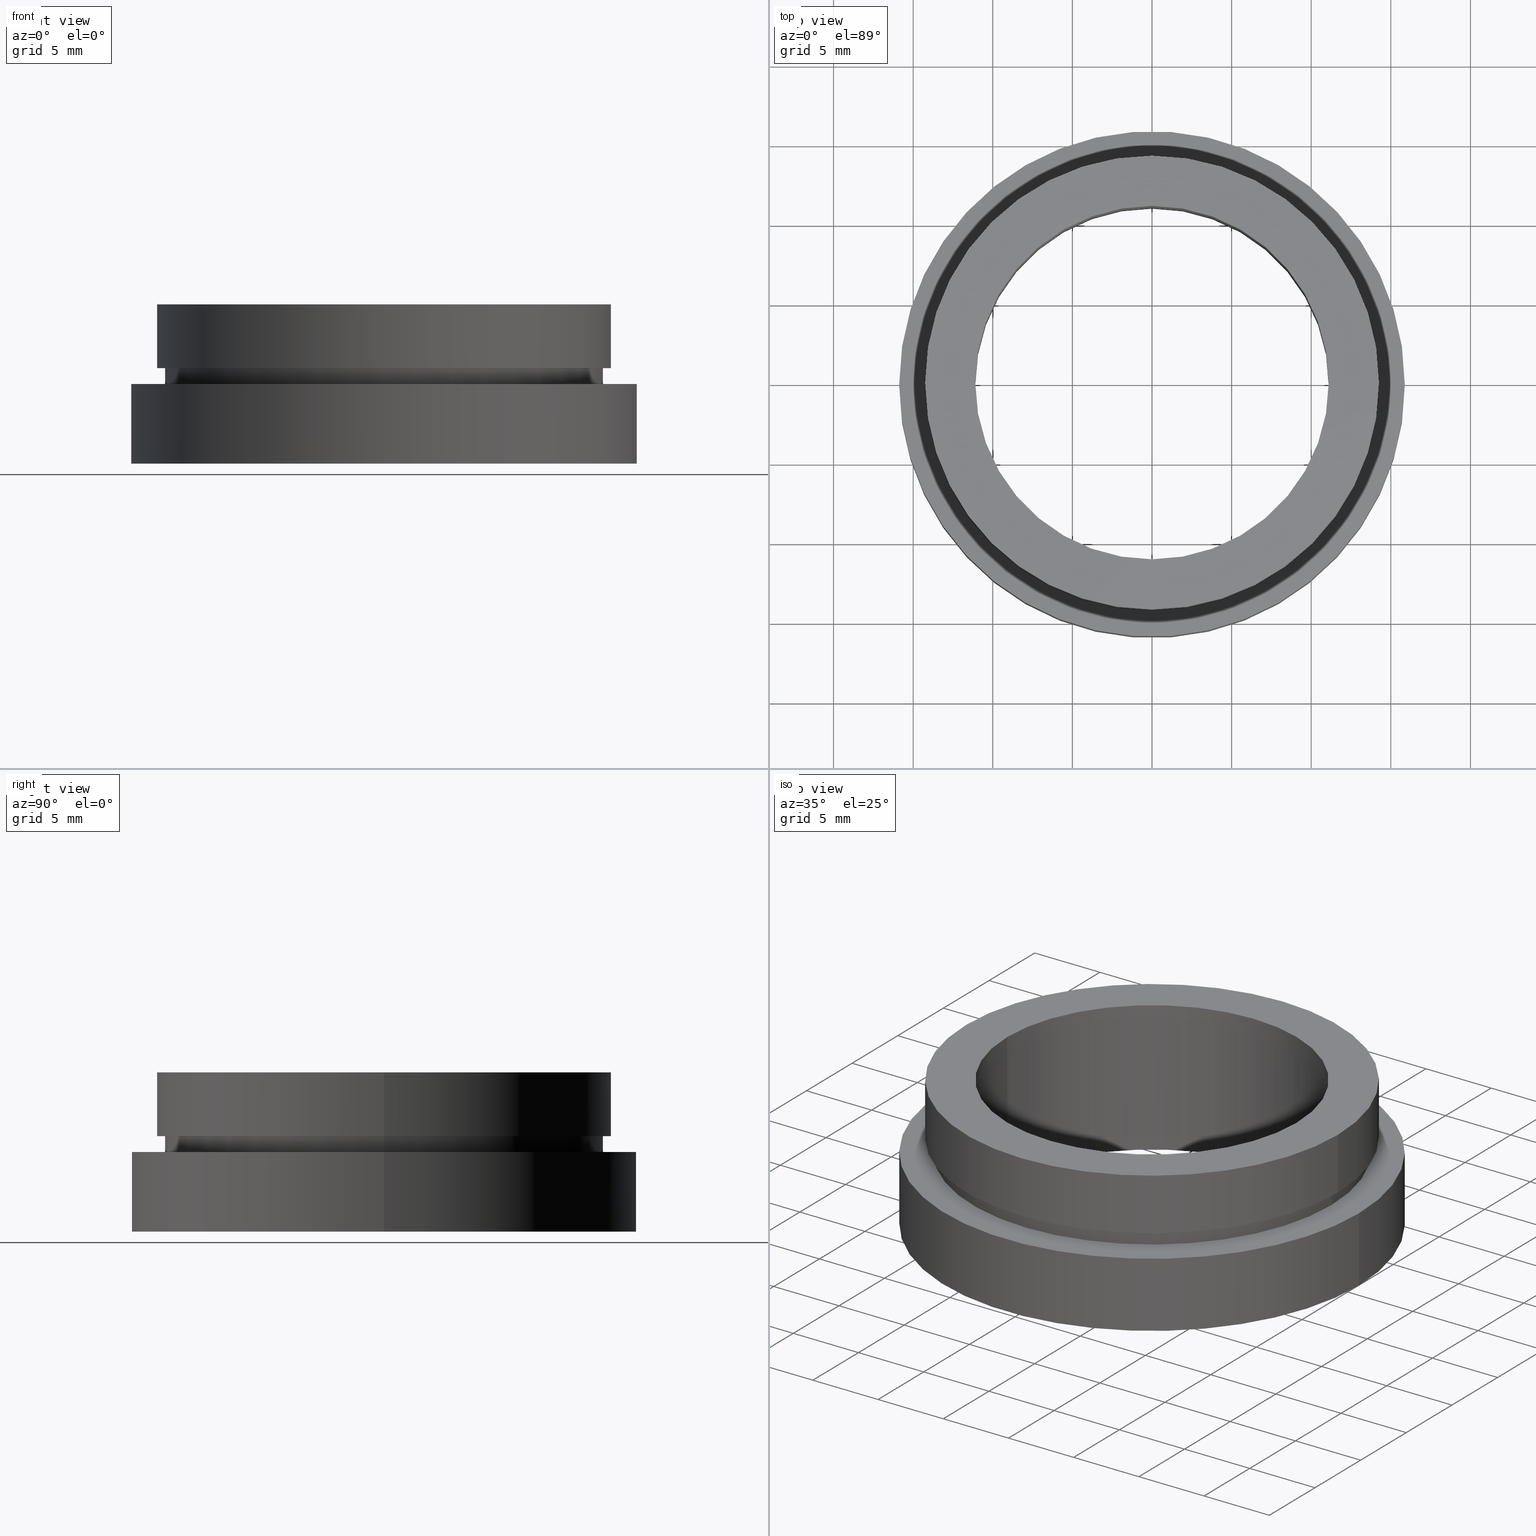
[diagram: canonical four-view strip — front | top / right | iso, engineering-drawing reading convention]
A machine part, canonical four-view strip (front | top / right | iso — engineering-drawing reading convention). The complete STEP part file that produces these views, byte-faithful:
ISO-10303-21;
HEADER;
FILE_DESCRIPTION (( 'STEP AP214' ),
    '1' );
FILE_NAME ('504064.STEP',
    '2019-09-16T08:11:01',
    ( 'user' ),
    ( '΢���й�' ),
    'SwSTEP 2.0',
    'SolidWorks 2016',
    '' );
FILE_SCHEMA (( 'AUTOMOTIVE_DESIGN' ));
ENDSEC;

DATA;
#1 = ADVANCED_FACE ( 'NONE', ( #52 ), #7, .F. ) ;
#2 = FILL_AREA_STYLE_COLOUR ( '', #296 ) ;
#3 = ORIENTED_EDGE ( 'NONE', *, *, #24, .T. ) ;
#4 = AXIS2_PLACEMENT_3D ( 'NONE', #189, #25, #123 ) ;
#5 = CIRCLE ( 'NONE', #276, 11.10000000000000100 ) ;
#6 = FILL_AREA_STYLE_COLOUR ( '', #170 ) ;
#7 = CYLINDRICAL_SURFACE ( 'NONE', #390, 11.10000000000000100 ) ;
#8 = DIRECTION ( 'NONE',  ( -0.0000000000000000000, -0.0000000000000000000, -1.000000000000000000 ) ) ;
#9 = CARTESIAN_POINT ( 'NONE',  ( 13.75000000000000400, 0.0000000000000000000, -5.000000000000000000 ) ) ;
#10 = AXIS2_PLACEMENT_3D ( 'NONE', #161, #222, #376 ) ;
#11 = DIRECTION ( 'NONE',  ( -1.000000000000000000, 0.0000000000000000000, 0.0000000000000000000 ) ) ;
#12 = ADVANCED_FACE ( 'NONE', ( #364, #313 ), #172, .F. ) ;
#13 = AXIS2_PLACEMENT_3D ( 'NONE', #323, #265, #386 ) ;
#14 = ORIENTED_EDGE ( 'NONE', *, *, #381, .F. ) ;
#15 = AXIS2_PLACEMENT_3D ( 'NONE', #247, #76, #80 ) ;
#16 = SURFACE_STYLE_FILL_AREA ( #329 ) ;
#17 = PRODUCT_CONTEXT ( 'NONE', #193, 'mechanical' ) ;
#18 = EDGE_LOOP ( 'NONE', ( #54, #181, #118, #210 ) ) ;
#19 = EDGE_CURVE ( 'NONE', #187, #50, #142, .T. ) ;
#20 = CIRCLE ( 'NONE', #380, 15.87500000000000000 ) ;
#21 = SURFACE_STYLE_USAGE ( .BOTH. , #106 ) ;
#22 = ORIENTED_EDGE ( 'NONE', *, *, #381, .T. ) ;
#23 = ORIENTED_EDGE ( 'NONE', *, *, #209, .F. ) ;
#24 = EDGE_CURVE ( 'NONE', #400, #156, #5, .T. ) ;
#25 = DIRECTION ( 'NONE',  ( -0.0000000000000000000, -0.0000000000000000000, -1.000000000000000000 ) ) ;
#26 = AXIS2_PLACEMENT_3D ( 'NONE', #414, #55, #387 ) ;
#27 = CIRCLE ( 'NONE', #38, 13.75000000000000400 ) ;
#28 = DIRECTION ( 'NONE',  ( -0.0000000000000000000, -0.0000000000000000000, -1.000000000000000000 ) ) ;
#29 = EDGE_CURVE ( 'NONE', #187, #75, #20, .T. ) ;
#30 =( NAMED_UNIT ( * ) SI_UNIT ( $, .STERADIAN. ) SOLID_ANGLE_UNIT ( ) );
#31 = CARTESIAN_POINT ( 'NONE',  ( 14.25000000000000400, 0.0000000000000000000, -4.000000000000000000 ) ) ;
#32 = DIRECTION ( 'NONE',  ( -0.0000000000000000000, -0.0000000000000000000, -1.000000000000000000 ) ) ;
#33 = ADVANCED_FACE ( 'NONE', ( #275 ), #63, .T. ) ;
#34 = ORIENTED_EDGE ( 'NONE', *, *, #62, .F. ) ;
#35 = DIRECTION ( 'NONE',  ( -0.0000000000000000000, -0.0000000000000000000, -1.000000000000000000 ) ) ;
#36 = DIRECTION ( 'NONE',  ( -0.0000000000000000000, -0.0000000000000000000, -1.000000000000000000 ) ) ;
#37 = UNCERTAINTY_MEASURE_WITH_UNIT (LENGTH_MEASURE( 1.000000000000000100E-005 ), #167, 'distance_accuracy_value', 'NONE');
#38 = AXIS2_PLACEMENT_3D ( 'NONE', #166, #99, #184 ) ;
#39 = PLANE ( 'NONE',  #373 ) ;
#40 = ORIENTED_EDGE ( 'NONE', *, *, #112, .T. ) ;
#41 = STYLED_ITEM ( 'NONE', ( #134 ), #33 ) ;
#42 =( NAMED_UNIT ( * ) PLANE_ANGLE_UNIT ( ) SI_UNIT ( $, .RADIAN. ) );
#43 = CARTESIAN_POINT ( 'NONE',  ( 0.0000000000000000000, 0.0000000000000000000, -19.14057971014493000 ) ) ;
#44 = ORIENTED_EDGE ( 'NONE', *, *, #92, .T. ) ;
#45 = ORIENTED_EDGE ( 'NONE', *, *, #248, .T. ) ;
#46 = CARTESIAN_POINT ( 'NONE',  ( -14.25000000000000400, 0.0000000000000000000, -19.14057971014493000 ) ) ;
#47 = FACE_OUTER_BOUND ( 'NONE', #244, .T. ) ;
#48 = PRESENTATION_LAYER_ASSIGNMENT (  '', '', ( #73 ) ) ;
#49 = PRESENTATION_LAYER_ASSIGNMENT (  '', '', ( #325 ) ) ;
#50 = VERTEX_POINT ( 'NONE', #352 ) ;
#51 = LINE ( 'NONE', #218, #260 ) ;
#52 = FACE_OUTER_BOUND ( 'NONE', #97, .T. ) ;
#53 = EDGE_LOOP ( 'NONE', ( #416, #326, #82, #347 ) ) ;
#54 = ORIENTED_EDGE ( 'NONE', *, *, #147, .T. ) ;
#55 = DIRECTION ( 'NONE',  ( -0.0000000000000000000, -0.0000000000000000000, -1.000000000000000000 ) ) ;
#56 = ORIENTED_EDGE ( 'NONE', *, *, #124, .T. ) ;
#57 = DIRECTION ( 'NONE',  ( 0.0000000000000000000, 0.0000000000000000000, 1.000000000000000000 ) ) ;
#58 = FILL_AREA_STYLE ('',( #2 ) ) ;
#59 = STYLED_ITEM ( 'NONE', ( #194 ), #1 ) ;
#60 = CYLINDRICAL_SURFACE ( 'NONE', #152, 13.75000000000000400 ) ;
#61 = ORIENTED_EDGE ( 'NONE', *, *, #191, .T. ) ;
#62 = EDGE_CURVE ( 'NONE', #392, #148, #163, .T. ) ;
#63 = CYLINDRICAL_SURFACE ( 'NONE', #290, 14.25000000000000400 ) ;
#64 = CARTESIAN_POINT ( 'NONE',  ( 11.10000000000000100, 1.359357947053562400E-015, -10.00000000000000000 ) ) ;
#65 = ORIENTED_EDGE ( 'NONE', *, *, #176, .F. ) ;
#66 = ADVANCED_FACE ( 'NONE', ( #197, #203 ), #39, .F. ) ;
#67 = SURFACE_SIDE_STYLE ('',( #406 ) ) ;
#68 = LINE ( 'NONE', #242, #125 ) ;
#69 = ORIENTED_EDGE ( 'NONE', *, *, #292, .T. ) ;
#70 = EDGE_CURVE ( 'NONE', #171, #423, #382, .T. ) ;
#71 = PLANE ( 'NONE',  #251 ) ;
#72 = DIRECTION ( 'NONE',  ( -1.000000000000000000, 0.0000000000000000000, 0.0000000000000000000 ) ) ;
#73 = STYLED_ITEM ( 'NONE', ( #362 ), #411 ) ;
#74 = DIRECTION ( 'NONE',  ( -1.000000000000000000, 0.0000000000000000000, 0.0000000000000000000 ) ) ;
#75 = VERTEX_POINT ( 'NONE', #307 ) ;
#76 = DIRECTION ( 'NONE',  ( -0.0000000000000000000, -0.0000000000000000000, -1.000000000000000000 ) ) ;
#77 = FACE_OUTER_BOUND ( 'NONE', #241, .T. ) ;
#78 = VECTOR ( 'NONE', #289, 1000.000000000000000 ) ;
#79 = PRESENTATION_LAYER_ASSIGNMENT (  '', '', ( #245 ) ) ;
#80 = DIRECTION ( 'NONE',  ( -1.000000000000000000, 0.0000000000000000000, 0.0000000000000000000 ) ) ;
#81 = UNCERTAINTY_MEASURE_WITH_UNIT (LENGTH_MEASURE( 1.000000000000000100E-005 ), #107, 'distance_accuracy_value', 'NONE');
#82 = ORIENTED_EDGE ( 'NONE', *, *, #238, .T. ) ;
#83 = PLANE ( 'NONE',  #319 ) ;
#84 = EDGE_CURVE ( 'NONE', #272, #145, #259, .T. ) ;
#85 = PRODUCT_DEFINITION_CONTEXT ( 'detailed design', #389, 'design' ) ;
#86 = APPLICATION_PROTOCOL_DEFINITION ( 'draft international standard', 'automotive_design', 1998, #389 ) ;
#87 = CARTESIAN_POINT ( 'NONE',  ( 0.0000000000000000000, 0.0000000000000000000, -19.14057971014493000 ) ) ;
#88 = CARTESIAN_POINT ( 'NONE',  ( 0.0000000000000000000, 0.0000000000000000000, 0.0000000000000000000 ) ) ;
#89 = CARTESIAN_POINT ( 'NONE',  ( -11.10000000000000100, 0.0000000000000000000, -19.14057971014493000 ) ) ;
#90 = CARTESIAN_POINT ( 'NONE',  ( 0.0000000000000000000, 0.0000000000000000000, -10.00000000000000000 ) ) ;
#91 = DIRECTION ( 'NONE',  ( -1.000000000000000000, 0.0000000000000000000, 0.0000000000000000000 ) ) ;
#92 = EDGE_CURVE ( 'NONE', #50, #286, #398, .T. ) ;
#93 = CYLINDRICAL_SURFACE ( 'NONE', #26, 13.75000000000000400 ) ;
#94 = VECTOR ( 'NONE', #165, 1000.000000000000000 ) ;
#95 = VERTEX_POINT ( 'NONE', #365 ) ;
#96 =( NAMED_UNIT ( * ) PLANE_ANGLE_UNIT ( ) SI_UNIT ( $, .RADIAN. ) );
#97 = EDGE_LOOP ( 'NONE', ( #23, #212, #126, #220 ) ) ;
#98 = EDGE_CURVE ( 'NONE', #119, #95, #68, .T. ) ;
#99 = DIRECTION ( 'NONE',  ( -0.0000000000000000000, -0.0000000000000000000, -1.000000000000000000 ) ) ;
#100 = FACE_BOUND ( 'NONE', #219, .T. ) ;
#101 = ORIENTED_EDGE ( 'NONE', *, *, #349, .T. ) ;
#102 = DIRECTION ( 'NONE',  ( -0.0000000000000000000, -0.0000000000000000000, -1.000000000000000000 ) ) ;
#103 = CARTESIAN_POINT ( 'NONE',  ( 14.25000000000000400, 1.745121688784978600E-015, 0.0000000000000000000 ) ) ;
#104 = UNCERTAINTY_MEASURE_WITH_UNIT (LENGTH_MEASURE( 1.000000000000000100E-005 ), #253, 'distance_accuracy_value', 'NONE');
#105 = SURFACE_SIDE_STYLE ('',( #16 ) ) ;
#106 = SURFACE_SIDE_STYLE ('',( #243 ) ) ;
#107 =( LENGTH_UNIT ( ) NAMED_UNIT ( * ) SI_UNIT ( .MILLI., .METRE. ) );
#108 = ADVANCED_FACE ( 'NONE', ( #100, #77 ), #71, .F. ) ;
#109 = VERTEX_POINT ( 'NONE', #139 ) ;
#110 = PRESENTATION_LAYER_ASSIGNMENT (  '', '', ( #41 ) ) ;
#111 = DIRECTION ( 'NONE',  ( -0.0000000000000000000, -0.0000000000000000000, -1.000000000000000000 ) ) ;
#112 = EDGE_CURVE ( 'NONE', #145, #287, #246, .T. ) ;
#113 = CARTESIAN_POINT ( 'NONE',  ( 14.25000000000000400, 1.745121688784978600E-015, -4.000000000000000000 ) ) ;
#114 =( LENGTH_UNIT ( ) NAMED_UNIT ( * ) SI_UNIT ( .MILLI., .METRE. ) );
#115 =( GEOMETRIC_REPRESENTATION_CONTEXT ( 3 ) GLOBAL_UNCERTAINTY_ASSIGNED_CONTEXT ( ( #356 ) ) GLOBAL_UNIT_ASSIGNED_CONTEXT ( ( #299, #393, #30 ) ) REPRESENTATION_CONTEXT ( 'NONE', 'WORKASPACE' ) );
#116 = FACE_OUTER_BOUND ( 'NONE', #420, .T. ) ;
#117 = CARTESIAN_POINT ( 'NONE',  ( 13.75000000000000400, 1.683889348827611200E-015, -4.000000000000000000 ) ) ;
#118 = ORIENTED_EDGE ( 'NONE', *, *, #191, .F. ) ;
#119 = VERTEX_POINT ( 'NONE', #383 ) ;
#120 = DIRECTION ( 'NONE',  ( -0.0000000000000000000, -0.0000000000000000000, -1.000000000000000000 ) ) ;
#121 = DIRECTION ( 'NONE',  ( 1.000000000000000000, 0.0000000000000000000, 0.0000000000000000000 ) ) ;
#122 = CARTESIAN_POINT ( 'NONE',  ( 0.0000000000000000000, 0.0000000000000000000, -19.14057971014493000 ) ) ;
#123 = DIRECTION ( 'NONE',  ( -1.000000000000000000, 0.0000000000000000000, 0.0000000000000000000 ) ) ;
#124 = EDGE_CURVE ( 'NONE', #272, #109, #343, .T. ) ;
#125 = VECTOR ( 'NONE', #164, 1000.000000000000000 ) ;
#126 = ORIENTED_EDGE ( 'NONE', *, *, #133, .T. ) ;
#127 = SHAPE_DEFINITION_REPRESENTATION ( #211, #391 ) ;
#128 = PRODUCT_DEFINITION_FORMATION_WITH_SPECIFIED_SOURCE ( '�κ�', '', #188, .NOT_KNOWN. ) ;
#129 = PRESENTATION_STYLE_ASSIGNMENT (( #302 ) ) ;
#130 = CIRCLE ( 'NONE', #149, 11.10000000000000100 ) ;
#131 = DIRECTION ( 'NONE',  ( 0.0000000000000000000, 0.0000000000000000000, 1.000000000000000000 ) ) ;
#132 = ORIENTED_EDGE ( 'NONE', *, *, #112, .F. ) ;
#133 = EDGE_CURVE ( 'NONE', #400, #148, #229, .T. ) ;
#134 = PRESENTATION_STYLE_ASSIGNMENT (( #21 ) ) ;
#135 = CARTESIAN_POINT ( 'NONE',  ( -11.10000000000000100, 0.0000000000000000000, -10.00000000000000000 ) ) ;
#136 = AXIS2_PLACEMENT_3D ( 'NONE', #250, #375, #74 ) ;
#137 =( NAMED_UNIT ( * ) SI_UNIT ( $, .STERADIAN. ) SOLID_ANGLE_UNIT ( ) );
#138 = ADVANCED_FACE ( 'NONE', ( #179, #331 ), #83, .F. ) ;
#139 = CARTESIAN_POINT ( 'NONE',  ( -14.25000000000000400, 0.0000000000000000000, 0.0000000000000000000 ) ) ;
#140 = DIRECTION ( 'NONE',  ( -1.000000000000000000, 0.0000000000000000000, 0.0000000000000000000 ) ) ;
#141 = CARTESIAN_POINT ( 'NONE',  ( 0.0000000000000000000, 0.0000000000000000000, -19.14057971014493000 ) ) ;
#142 = LINE ( 'NONE', #157, #78 ) ;
#143 = CARTESIAN_POINT ( 'NONE',  ( 0.0000000000000000000, 0.0000000000000000000, -19.14057971014493000 ) ) ;
#144 = EDGE_CURVE ( 'NONE', #109, #287, #388, .T. ) ;
#145 = VERTEX_POINT ( 'NONE', #113 ) ;
#146 = SURFACE_SIDE_STYLE ('',( #274 ) ) ;
#147 = EDGE_CURVE ( 'NONE', #119, #171, #177, .T. ) ;
#148 = VERTEX_POINT ( 'NONE', #135 ) ;
#149 = AXIS2_PLACEMENT_3D ( 'NONE', #395, #401, #402 ) ;
#150 =( NAMED_UNIT ( * ) PLANE_ANGLE_UNIT ( ) SI_UNIT ( $, .RADIAN. ) );
#151 = ORIENTED_EDGE ( 'NONE', *, *, #29, .F. ) ;
#152 = AXIS2_PLACEMENT_3D ( 'NONE', #122, #154, #72 ) ;
#153 = COLOUR_RGB ( '',1.000000000000000000, 1.000000000000000000, 1.000000000000000000 ) ;
#154 = DIRECTION ( 'NONE',  ( -0.0000000000000000000, -0.0000000000000000000, -1.000000000000000000 ) ) ;
#155 = EDGE_LOOP ( 'NONE', ( #14, #353 ) ) ;
#156 = VERTEX_POINT ( 'NONE', #408 ) ;
#157 = CARTESIAN_POINT ( 'NONE',  ( 15.87500000000000000, 1.944126793646423200E-015, -19.14057971014493000 ) ) ;
#158 = CIRCLE ( 'NONE', #409, 15.87500000000000000 ) ;
#159 = EDGE_LOOP ( 'NONE', ( #173, #151 ) ) ;
#160 = CARTESIAN_POINT ( 'NONE',  ( 0.0000000000000000000, 0.0000000000000000000, -4.000000000000000000 ) ) ;
#161 = CARTESIAN_POINT ( 'NONE',  ( 0.0000000000000000000, 0.0000000000000000000, -4.000000000000000000 ) ) ;
#162 =( GEOMETRIC_REPRESENTATION_CONTEXT ( 3 ) GLOBAL_UNCERTAINTY_ASSIGNED_CONTEXT ( ( #256 ) ) GLOBAL_UNIT_ASSIGNED_CONTEXT ( ( #114, #96, #232 ) ) REPRESENTATION_CONTEXT ( 'NONE', 'WORKASPACE' ) );
#163 = CIRCLE ( 'NONE', #350, 11.10000000000000100 ) ;
#164 = DIRECTION ( 'NONE',  ( -0.0000000000000000000, -0.0000000000000000000, -1.000000000000000000 ) ) ;
#165 = DIRECTION ( 'NONE',  ( -0.0000000000000000000, -0.0000000000000000000, -1.000000000000000000 ) ) ;
#166 = CARTESIAN_POINT ( 'NONE',  ( 0.0000000000000000000, 0.0000000000000000000, -5.000000000000000900 ) ) ;
#167 =( LENGTH_UNIT ( ) NAMED_UNIT ( * ) SI_UNIT ( .MILLI., .METRE. ) );
#168 = DIRECTION ( 'NONE',  ( -0.0000000000000000000, -0.0000000000000000000, -1.000000000000000000 ) ) ;
#169 =( NAMED_UNIT ( * ) SI_UNIT ( $, .STERADIAN. ) SOLID_ANGLE_UNIT ( ) );
#170 = COLOUR_RGB ( '',1.000000000000000000, 1.000000000000000000, 1.000000000000000000 ) ;
#171 = VERTEX_POINT ( 'NONE', #117 ) ;
#172 = PLANE ( 'NONE',  #13 ) ;
#173 = ORIENTED_EDGE ( 'NONE', *, *, #349, .F. ) ;
#174 = DIRECTION ( 'NONE',  ( 1.000000000000000000, 0.0000000000000000000, -0.0000000000000000000 ) ) ;
#175 = FILL_AREA_STYLE ('',( #6 ) ) ;
#176 = EDGE_CURVE ( 'NONE', #156, #400, #183, .T. ) ;
#177 = CIRCLE ( 'NONE', #262, 13.75000000000000400 ) ;
#178 = FILL_AREA_STYLE_COLOUR ( '', #342 ) ;
#179 = FACE_OUTER_BOUND ( 'NONE', #159, .T. ) ;
#180 = ADVANCED_FACE ( 'NONE', ( #47 ), #235, .F. ) ;
#181 = ORIENTED_EDGE ( 'NONE', *, *, #70, .T. ) ;
#182 =( GEOMETRIC_REPRESENTATION_CONTEXT ( 3 ) GLOBAL_UNCERTAINTY_ASSIGNED_CONTEXT ( ( #37 ) ) GLOBAL_UNIT_ASSIGNED_CONTEXT ( ( #167, #150, #169 ) ) REPRESENTATION_CONTEXT ( 'NONE', 'WORKASPACE' ) );
#183 = CIRCLE ( 'NONE', #136, 11.10000000000000100 ) ;
#184 = DIRECTION ( 'NONE',  ( -1.000000000000000000, 0.0000000000000000000, 0.0000000000000000000 ) ) ;
#185 = FACE_OUTER_BOUND ( 'NONE', #53, .T. ) ;
#186 = ORIENTED_EDGE ( 'NONE', *, *, #176, .T. ) ;
#187 = VERTEX_POINT ( 'NONE', #258 ) ;
#188 = PRODUCT ( '504064', '504064', '', ( #17 ) ) ;
#189 = CARTESIAN_POINT ( 'NONE',  ( 0.0000000000000000000, 0.0000000000000000000, -19.14057971014493000 ) ) ;
#190 = FILL_AREA_STYLE ('',( #178 ) ) ;
#191 = EDGE_CURVE ( 'NONE', #95, #423, #27, .T. ) ;
#192 = MECHANICAL_DESIGN_GEOMETRIC_PRESENTATION_REPRESENTATION (  '', ( #269 ), #312 ) ;
#193 = APPLICATION_CONTEXT ( 'automotive_design' ) ;
#194 = PRESENTATION_STYLE_ASSIGNMENT (( #200 ) ) ;
#195 = AXIS2_PLACEMENT_3D ( 'NONE', #425, #430, #432 ) ;
#196 = DIRECTION ( 'NONE',  ( -0.0000000000000000000, -0.0000000000000000000, -1.000000000000000000 ) ) ;
#197 = FACE_BOUND ( 'NONE', #385, .T. ) ;
#198 = ORIENTED_EDGE ( 'NONE', *, *, #255, .F. ) ;
#199 = MECHANICAL_DESIGN_GEOMETRIC_PRESENTATION_REPRESENTATION (  '', ( #59 ), #162 ) ;
#200 = SURFACE_STYLE_USAGE ( .BOTH. , #317 ) ;
#201 =( NAMED_UNIT ( * ) PLANE_ANGLE_UNIT ( ) SI_UNIT ( $, .RADIAN. ) );
#202 = ADVANCED_FACE ( 'NONE', ( #116 ), #270, .T. ) ;
#203 = FACE_OUTER_BOUND ( 'NONE', #404, .T. ) ;
#204 = AXIS2_PLACEMENT_3D ( 'NONE', #160, #419, #294 ) ;
#205 = ORIENTED_EDGE ( 'NONE', *, *, #306, .F. ) ;
#206 =( NAMED_UNIT ( * ) SI_UNIT ( $, .STERADIAN. ) SOLID_ANGLE_UNIT ( ) );
#207 = FILL_AREA_STYLE_COLOUR ( '', #153 ) ;
#208 =( LENGTH_UNIT ( ) NAMED_UNIT ( * ) SI_UNIT ( .MILLI., .METRE. ) );
#209 = EDGE_CURVE ( 'NONE', #156, #392, #51, .T. ) ;
#210 = ORIENTED_EDGE ( 'NONE', *, *, #98, .F. ) ;
#211 = PRODUCT_DEFINITION_SHAPE ( 'NONE', 'NONE',  #417 ) ;
#212 = ORIENTED_EDGE ( 'NONE', *, *, #24, .F. ) ;
#213 = CARTESIAN_POINT ( 'NONE',  ( -15.87500000000000000, 0.0000000000000000000, -10.00000000000000000 ) ) ;
#214 = CIRCLE ( 'NONE', #359, 13.75000000000000400 ) ;
#215 = EDGE_LOOP ( 'NONE', ( #61, #69 ) ) ;
#216 = AXIS2_PLACEMENT_3D ( 'NONE', #88, #279, #11 ) ;
#217 = PRESENTATION_STYLE_ASSIGNMENT (( #267 ) ) ;
#218 = CARTESIAN_POINT ( 'NONE',  ( 11.10000000000000100, 1.359357947053562400E-015, -19.14057971014493000 ) ) ;
#219 = EDGE_LOOP ( 'NONE', ( #205, #34 ) ) ;
#220 = ORIENTED_EDGE ( 'NONE', *, *, #306, .T. ) ;
#221 = PRESENTATION_LAYER_ASSIGNMENT (  '', '', ( #59 ) ) ;
#222 = DIRECTION ( 'NONE',  ( -0.0000000000000000000, -0.0000000000000000000, -1.000000000000000000 ) ) ;
#223 = CARTESIAN_POINT ( 'NONE',  ( 0.0000000000000000000, 0.0000000000000000000, -10.00000000000000000 ) ) ;
#224 = DIRECTION ( 'NONE',  ( -0.0000000000000000000, 0.0000000000000000000, -1.000000000000000000 ) ) ;
#225 = EDGE_LOOP ( 'NONE', ( #346, #56, #304, #132 ) ) ;
#226 = DIRECTION ( 'NONE',  ( -1.000000000000000000, 0.0000000000000000000, 0.0000000000000000000 ) ) ;
#227 = SURFACE_STYLE_FILL_AREA ( #58 ) ;
#228 = DIRECTION ( 'NONE',  ( 0.0000000000000000000, 0.0000000000000000000, 1.000000000000000000 ) ) ;
#229 = LINE ( 'NONE', #89, #396 ) ;
#230 = CARTESIAN_POINT ( 'NONE',  ( 0.0000000000000000000, 0.0000000000000000000, -10.00000000000000000 ) ) ;
#231 = MECHANICAL_DESIGN_GEOMETRIC_PRESENTATION_REPRESENTATION (  '', ( #245 ), #115 ) ;
#232 =( NAMED_UNIT ( * ) SI_UNIT ( $, .STERADIAN. ) SOLID_ANGLE_UNIT ( ) );
#233 = MECHANICAL_DESIGN_GEOMETRIC_PRESENTATION_REPRESENTATION (  '', ( #41 ), #295 ) ;
#234 = DIRECTION ( 'NONE',  ( -0.0000000000000000000, -0.0000000000000000000, -1.000000000000000000 ) ) ;
#235 = CYLINDRICAL_SURFACE ( 'NONE', #4, 11.10000000000000100 ) ;
#236 = ORIENTED_EDGE ( 'NONE', *, *, #98, .T. ) ;
#237 = SURFACE_STYLE_USAGE ( .BOTH. , #105 ) ;
#238 = EDGE_CURVE ( 'NONE', #75, #286, #291, .T. ) ;
#239 = DIRECTION ( 'NONE',  ( -0.0000000000000000000, -0.0000000000000000000, -1.000000000000000000 ) ) ;
#240 = DIRECTION ( 'NONE',  ( -1.000000000000000000, 0.0000000000000000000, 0.0000000000000000000 ) ) ;
#241 = EDGE_LOOP ( 'NONE', ( #310, #44 ) ) ;
#242 = CARTESIAN_POINT ( 'NONE',  ( -13.75000000000000400, 0.0000000000000000000, -19.14057971014493000 ) ) ;
#243 = SURFACE_STYLE_FILL_AREA ( #363 ) ;
#244 = EDGE_LOOP ( 'NONE', ( #65, #261, #340, #399 ) ) ;
#245 = STYLED_ITEM ( 'NONE', ( #217 ), #391 ) ;
#246 = CIRCLE ( 'NONE', #204, 14.25000000000000400 ) ;
#247 = CARTESIAN_POINT ( 'NONE',  ( 0.0000000000000000000, 0.0000000000000000000, -5.000000000000000900 ) ) ;
#248 = EDGE_CURVE ( 'NONE', #171, #119, #214, .T. ) ;
#249 = ADVANCED_FACE ( 'NONE', ( #185 ), #284, .T. ) ;
#250 = CARTESIAN_POINT ( 'NONE',  ( 0.0000000000000000000, 0.0000000000000000000, 0.0000000000000000000 ) ) ;
#251 = AXIS2_PLACEMENT_3D ( 'NONE', #277, #57, #361 ) ;
#252 = ORIENTED_EDGE ( 'NONE', *, *, #147, .F. ) ;
#253 =( LENGTH_UNIT ( ) NAMED_UNIT ( * ) SI_UNIT ( .MILLI., .METRE. ) );
#254 = DIRECTION ( 'NONE',  ( -1.000000000000000000, 0.0000000000000000000, 0.0000000000000000000 ) ) ;
#255 = EDGE_CURVE ( 'NONE', #287, #145, #257, .T. ) ;
#256 = UNCERTAINTY_MEASURE_WITH_UNIT (LENGTH_MEASURE( 1.000000000000000100E-005 ), #114, 'distance_accuracy_value', 'NONE');
#257 = CIRCLE ( 'NONE', #10, 14.25000000000000400 ) ;
#258 = CARTESIAN_POINT ( 'NONE',  ( 15.87500000000000000, 1.944126793646423200E-015, -5.000000000000000900 ) ) ;
#259 = LINE ( 'NONE', #366, #308 ) ;
#260 = VECTOR ( 'NONE', #234, 1000.000000000000000 ) ;
#261 = ORIENTED_EDGE ( 'NONE', *, *, #209, .T. ) ;
#262 = AXIS2_PLACEMENT_3D ( 'NONE', #264, #168, #240 ) ;
#263 = ORIENTED_EDGE ( 'NONE', *, *, #19, .T. ) ;
#264 = CARTESIAN_POINT ( 'NONE',  ( 0.0000000000000000000, 0.0000000000000000000, -4.000000000000000000 ) ) ;
#265 = DIRECTION ( 'NONE',  ( -0.0000000000000000000, 0.0000000000000000000, -1.000000000000000000 ) ) ;
#266 = PRESENTATION_LAYER_ASSIGNMENT (  '', '', ( #269 ) ) ;
#267 = SURFACE_STYLE_USAGE ( .BOTH. , #328 ) ;
#268 = CIRCLE ( 'NONE', #216, 14.25000000000000400 ) ;
#269 = STYLED_ITEM ( 'NONE', ( #278 ), #202 ) ;
#270 = CYLINDRICAL_SURFACE ( 'NONE', #369, 14.25000000000000400 ) ;
#271 = EDGE_LOOP ( 'NONE', ( #101, #263, #298, #354 ) ) ;
#272 = VERTEX_POINT ( 'NONE', #103 ) ;
#273 = DIRECTION ( 'NONE',  ( -1.000000000000000000, 0.0000000000000000000, 0.0000000000000000000 ) ) ;
#274 = SURFACE_STYLE_FILL_AREA ( #190 ) ;
#275 = FACE_OUTER_BOUND ( 'NONE', #225, .T. ) ;
#276 = AXIS2_PLACEMENT_3D ( 'NONE', #422, #36, #140 ) ;
#277 = CARTESIAN_POINT ( 'NONE',  ( 15.87500000000000000, 0.0000000000000000000, -10.00000000000000000 ) ) ;
#278 = PRESENTATION_STYLE_ASSIGNMENT (( #434 ) ) ;
#279 = DIRECTION ( 'NONE',  ( -0.0000000000000000000, -0.0000000000000000000, -1.000000000000000000 ) ) ;
#280 = ORIENTED_EDGE ( 'NONE', *, *, #144, .F. ) ;
#281 = AXIS2_PLACEMENT_3D ( 'NONE', #282, #426, #351 ) ;
#282 = CARTESIAN_POINT ( 'NONE',  ( 0.0000000000000000000, 0.0000000000000000000, -5.000000000000000900 ) ) ;
#283 = DIRECTION ( 'NONE',  ( -0.0000000000000000000, -0.0000000000000000000, -1.000000000000000000 ) ) ;
#284 = CYLINDRICAL_SURFACE ( 'NONE', #301, 15.87500000000000000 ) ;
#285 = AXIS2_PLACEMENT_3D ( 'NONE', #87, #283, #339 ) ;
#286 = VERTEX_POINT ( 'NONE', #213 ) ;
#287 = VERTEX_POINT ( 'NONE', #368 ) ;
#288 = FILL_AREA_STYLE_COLOUR ( '', #316 ) ;
#289 = DIRECTION ( 'NONE',  ( -0.0000000000000000000, -0.0000000000000000000, -1.000000000000000000 ) ) ;
#290 = AXIS2_PLACEMENT_3D ( 'NONE', #141, #348, #311 ) ;
#291 = LINE ( 'NONE', #345, #337 ) ;
#292 = EDGE_CURVE ( 'NONE', #423, #95, #407, .T. ) ;
#293 = ORIENTED_EDGE ( 'NONE', *, *, #248, .F. ) ;
#294 = DIRECTION ( 'NONE',  ( -1.000000000000000000, 0.0000000000000000000, 0.0000000000000000000 ) ) ;
#295 =( GEOMETRIC_REPRESENTATION_CONTEXT ( 3 ) GLOBAL_UNCERTAINTY_ASSIGNED_CONTEXT ( ( #344 ) ) GLOBAL_UNIT_ASSIGNED_CONTEXT ( ( #330, #42, #332 ) ) REPRESENTATION_CONTEXT ( 'NONE', 'WORKASPACE' ) );
#296 = COLOUR_RGB ( '',1.000000000000000000, 1.000000000000000000, 1.000000000000000000 ) ;
#297 = CLOSED_SHELL ( 'NONE', ( #180, #371, #300, #202, #12, #33, #66, #314, #138, #249, #108, #1 ) ) ;
#298 = ORIENTED_EDGE ( 'NONE', *, *, #322, .F. ) ;
#299 =( LENGTH_UNIT ( ) NAMED_UNIT ( * ) SI_UNIT ( .MILLI., .METRE. ) );
#300 = ADVANCED_FACE ( 'NONE', ( #341 ), #60, .T. ) ;
#301 = AXIS2_PLACEMENT_3D ( 'NONE', #143, #394, #226 ) ;
#302 = SURFACE_STYLE_USAGE ( .BOTH. , #67 ) ;
#303 = DIRECTION ( 'NONE',  ( -0.0000000000000000000, -0.0000000000000000000, -1.000000000000000000 ) ) ;
#304 = ORIENTED_EDGE ( 'NONE', *, *, #144, .T. ) ;
#305 = UNCERTAINTY_MEASURE_WITH_UNIT (LENGTH_MEASURE( 1.000000000000000100E-005 ), #208, 'distance_accuracy_value', 'NONE');
#306 = EDGE_CURVE ( 'NONE', #148, #392, #130, .T. ) ;
#307 = CARTESIAN_POINT ( 'NONE',  ( -15.87500000000000000, 0.0000000000000000000, -5.000000000000000900 ) ) ;
#308 = VECTOR ( 'NONE', #303, 1000.000000000000000 ) ;
#309 = DIRECTION ( 'NONE',  ( -1.000000000000000000, 0.0000000000000000000, 0.0000000000000000000 ) ) ;
#310 = ORIENTED_EDGE ( 'NONE', *, *, #322, .T. ) ;
#311 = DIRECTION ( 'NONE',  ( -1.000000000000000000, 0.0000000000000000000, 0.0000000000000000000 ) ) ;
#312 =( GEOMETRIC_REPRESENTATION_CONTEXT ( 3 ) GLOBAL_UNCERTAINTY_ASSIGNED_CONTEXT ( ( #104 ) ) GLOBAL_UNIT_ASSIGNED_CONTEXT ( ( #253, #201, #137 ) ) REPRESENTATION_CONTEXT ( 'NONE', 'WORKASPACE' ) );
#313 = FACE_BOUND ( 'NONE', #333, .T. ) ;
#314 = ADVANCED_FACE ( 'NONE', ( #358 ), #93, .T. ) ;
#315 = DIRECTION ( 'NONE',  ( -1.000000000000000000, 0.0000000000000000000, 0.0000000000000000000 ) ) ;
#316 = COLOUR_RGB ( '',1.000000000000000000, 1.000000000000000000, 1.000000000000000000 ) ;
#317 = SURFACE_SIDE_STYLE ('',( #433 ) ) ;
#318 = ORIENTED_EDGE ( 'NONE', *, *, #292, .F. ) ;
#319 = AXIS2_PLACEMENT_3D ( 'NONE', #9, #224, #405 ) ;
#320 =( NAMED_UNIT ( * ) SI_UNIT ( $, .STERADIAN. ) SOLID_ANGLE_UNIT ( ) );
#321 = FACE_OUTER_BOUND ( 'NONE', #271, .T. ) ;
#322 = EDGE_CURVE ( 'NONE', #286, #50, #158, .T. ) ;
#323 = CARTESIAN_POINT ( 'NONE',  ( 11.10000000000000100, 0.0000000000000000000, 0.0000000000000000000 ) ) ;
#324 = EDGE_LOOP ( 'NONE', ( #412, #45, #236, #318 ) ) ;
#325 = STYLED_ITEM ( 'NONE', ( #129 ), #180 ) ;
#326 = ORIENTED_EDGE ( 'NONE', *, *, #29, .T. ) ;
#327 = AXIS2_PLACEMENT_3D ( 'NONE', #374, #228, #121 ) ;
#328 = SURFACE_SIDE_STYLE ('',( #227 ) ) ;
#329 = FILL_AREA_STYLE ('',( #207 ) ) ;
#330 =( LENGTH_UNIT ( ) NAMED_UNIT ( * ) SI_UNIT ( .MILLI., .METRE. ) );
#331 = FACE_BOUND ( 'NONE', #215, .T. ) ;
#332 =( NAMED_UNIT ( * ) SI_UNIT ( $, .STERADIAN. ) SOLID_ANGLE_UNIT ( ) );
#333 = EDGE_LOOP ( 'NONE', ( #3, #186 ) ) ;
#334 = MECHANICAL_DESIGN_GEOMETRIC_PRESENTATION_REPRESENTATION (  '', ( #73 ), #427 ) ;
#335 = DIRECTION ( 'NONE',  ( -0.0000000000000000000, -0.0000000000000000000, -1.000000000000000000 ) ) ;
#336 = MECHANICAL_DESIGN_GEOMETRIC_PRESENTATION_REPRESENTATION (  '', ( #325 ), #424 ) ;
#337 = VECTOR ( 'NONE', #335, 1000.000000000000000 ) ;
#338 = CIRCLE ( 'NONE', #15, 15.87500000000000000 ) ;
#339 = DIRECTION ( 'NONE',  ( -1.000000000000000000, 0.0000000000000000000, 0.0000000000000000000 ) ) ;
#340 = ORIENTED_EDGE ( 'NONE', *, *, #62, .T. ) ;
#341 = FACE_OUTER_BOUND ( 'NONE', #18, .T. ) ;
#342 = COLOUR_RGB ( '',1.000000000000000000, 1.000000000000000000, 1.000000000000000000 ) ;
#343 = CIRCLE ( 'NONE', #195, 14.25000000000000400 ) ;
#344 = UNCERTAINTY_MEASURE_WITH_UNIT (LENGTH_MEASURE( 1.000000000000000100E-005 ), #330, 'distance_accuracy_value', 'NONE');
#345 = CARTESIAN_POINT ( 'NONE',  ( -15.87500000000000000, 0.0000000000000000000, -19.14057971014493000 ) ) ;
#346 = ORIENTED_EDGE ( 'NONE', *, *, #84, .F. ) ;
#347 = ORIENTED_EDGE ( 'NONE', *, *, #92, .F. ) ;
#348 = DIRECTION ( 'NONE',  ( -0.0000000000000000000, -0.0000000000000000000, -1.000000000000000000 ) ) ;
#349 = EDGE_CURVE ( 'NONE', #75, #187, #338, .T. ) ;
#350 = AXIS2_PLACEMENT_3D ( 'NONE', #230, #102, #315 ) ;
#351 = DIRECTION ( 'NONE',  ( -1.000000000000000000, 0.0000000000000000000, 0.0000000000000000000 ) ) ;
#352 = CARTESIAN_POINT ( 'NONE',  ( 15.87500000000000000, 1.944126793646423200E-015, -10.00000000000000000 ) ) ;
#353 = ORIENTED_EDGE ( 'NONE', *, *, #124, .F. ) ;
#354 = ORIENTED_EDGE ( 'NONE', *, *, #238, .F. ) ;
#355 = CARTESIAN_POINT ( 'NONE',  ( 0.0000000000000000000, 0.0000000000000000000, -19.14057971014493000 ) ) ;
#356 = UNCERTAINTY_MEASURE_WITH_UNIT (LENGTH_MEASURE( 1.000000000000000100E-005 ), #299, 'distance_accuracy_value', 'NONE');
#357 = DIRECTION ( 'NONE',  ( -1.000000000000000000, 0.0000000000000000000, 0.0000000000000000000 ) ) ;
#358 = FACE_OUTER_BOUND ( 'NONE', #324, .T. ) ;
#359 = AXIS2_PLACEMENT_3D ( 'NONE', #415, #239, #309 ) ;
#360 = CARTESIAN_POINT ( 'NONE',  ( -11.10000000000000100, 0.0000000000000000000, 0.0000000000000000000 ) ) ;
#361 = DIRECTION ( 'NONE',  ( 1.000000000000000000, 0.0000000000000000000, -0.0000000000000000000 ) ) ;
#362 = PRESENTATION_STYLE_ASSIGNMENT (( #237 ) ) ;
#363 = FILL_AREA_STYLE ('',( #288 ) ) ;
#364 = FACE_OUTER_BOUND ( 'NONE', #155, .T. ) ;
#365 = CARTESIAN_POINT ( 'NONE',  ( -13.75000000000000400, 0.0000000000000000000, -5.000000000000000900 ) ) ;
#366 = CARTESIAN_POINT ( 'NONE',  ( 14.25000000000000400, 1.745121688784978600E-015, -19.14057971014493000 ) ) ;
#367 = ORIENTED_EDGE ( 'NONE', *, *, #84, .T. ) ;
#368 = CARTESIAN_POINT ( 'NONE',  ( -14.25000000000000400, 0.0000000000000000000, -4.000000000000000000 ) ) ;
#369 = AXIS2_PLACEMENT_3D ( 'NONE', #355, #111, #357 ) ;
#370 = APPLICATION_PROTOCOL_DEFINITION ( 'draft international standard', 'automotive_design', 1998, #193 ) ;
#371 = ADVANCED_FACE ( 'NONE', ( #321 ), #418, .T. ) ;
#372 =( NAMED_UNIT ( * ) PLANE_ANGLE_UNIT ( ) SI_UNIT ( $, .RADIAN. ) );
#373 = AXIS2_PLACEMENT_3D ( 'NONE', #31, #131, #174 ) ;
#374 = CARTESIAN_POINT ( 'NONE',  ( 0.0000000000000000000, 0.0000000000000000000, 0.0000000000000000000 ) ) ;
#375 = DIRECTION ( 'NONE',  ( -0.0000000000000000000, -0.0000000000000000000, -1.000000000000000000 ) ) ;
#376 = DIRECTION ( 'NONE',  ( -1.000000000000000000, 0.0000000000000000000, 0.0000000000000000000 ) ) ;
#377 = PRODUCT_RELATED_PRODUCT_CATEGORY ( 'part', '', ( #188 ) ) ;
#378 = FILL_AREA_STYLE ('',( #403 ) ) ;
#379 = ORIENTED_EDGE ( 'NONE', *, *, #255, .T. ) ;
#380 = AXIS2_PLACEMENT_3D ( 'NONE', #410, #32, #421 ) ;
#381 = EDGE_CURVE ( 'NONE', #109, #272, #268, .T. ) ;
#382 = LINE ( 'NONE', #397, #94 ) ;
#383 = CARTESIAN_POINT ( 'NONE',  ( -13.75000000000000400, 0.0000000000000000000, -4.000000000000000000 ) ) ;
#384 = COLOUR_RGB ( '',1.000000000000000000, 1.000000000000000000, 1.000000000000000000 ) ;
#385 = EDGE_LOOP ( 'NONE', ( #252, #293 ) ) ;
#386 = DIRECTION ( 'NONE',  ( -1.000000000000000000, 0.0000000000000000000, 0.0000000000000000000 ) ) ;
#387 = DIRECTION ( 'NONE',  ( -1.000000000000000000, 0.0000000000000000000, 0.0000000000000000000 ) ) ;
#388 = LINE ( 'NONE', #46, #428 ) ;
#389 = APPLICATION_CONTEXT ( 'automotive_design' ) ;
#390 = AXIS2_PLACEMENT_3D ( 'NONE', #43, #8, #91 ) ;
#391 = ADVANCED_BREP_SHAPE_REPRESENTATION ( '504064', ( #411, #327 ), #182 ) ;
#392 = VERTEX_POINT ( 'NONE', #64 ) ;
#393 =( NAMED_UNIT ( * ) PLANE_ANGLE_UNIT ( ) SI_UNIT ( $, .RADIAN. ) );
#394 = DIRECTION ( 'NONE',  ( -0.0000000000000000000, -0.0000000000000000000, -1.000000000000000000 ) ) ;
#395 = CARTESIAN_POINT ( 'NONE',  ( 0.0000000000000000000, 0.0000000000000000000, -10.00000000000000000 ) ) ;
#396 = VECTOR ( 'NONE', #196, 1000.000000000000000 ) ;
#397 = CARTESIAN_POINT ( 'NONE',  ( 13.75000000000000400, 1.683889348827611200E-015, -19.14057971014493000 ) ) ;
#398 = CIRCLE ( 'NONE', #431, 15.87500000000000000 ) ;
#399 = ORIENTED_EDGE ( 'NONE', *, *, #133, .F. ) ;
#400 = VERTEX_POINT ( 'NONE', #360 ) ;
#401 = DIRECTION ( 'NONE',  ( -0.0000000000000000000, -0.0000000000000000000, -1.000000000000000000 ) ) ;
#402 = DIRECTION ( 'NONE',  ( -1.000000000000000000, 0.0000000000000000000, 0.0000000000000000000 ) ) ;
#403 = FILL_AREA_STYLE_COLOUR ( '', #384 ) ;
#404 = EDGE_LOOP ( 'NONE', ( #379, #40 ) ) ;
#405 = DIRECTION ( 'NONE',  ( -1.000000000000000000, 0.0000000000000000000, 0.0000000000000000000 ) ) ;
#406 = SURFACE_STYLE_FILL_AREA ( #175 ) ;
#407 = CIRCLE ( 'NONE', #281, 13.75000000000000400 ) ;
#408 = CARTESIAN_POINT ( 'NONE',  ( 11.10000000000000100, 1.359357947053562400E-015, 0.0000000000000000000 ) ) ;
#409 = AXIS2_PLACEMENT_3D ( 'NONE', #223, #35, #273 ) ;
#410 = CARTESIAN_POINT ( 'NONE',  ( 0.0000000000000000000, 0.0000000000000000000, -5.000000000000000900 ) ) ;
#411 = MANIFOLD_SOLID_BREP ( '��ת1', #297 ) ;
#412 = ORIENTED_EDGE ( 'NONE', *, *, #70, .F. ) ;
#413 = CARTESIAN_POINT ( 'NONE',  ( 13.75000000000000400, 1.683889348827611200E-015, -5.000000000000000900 ) ) ;
#414 = CARTESIAN_POINT ( 'NONE',  ( 0.0000000000000000000, 0.0000000000000000000, -19.14057971014493000 ) ) ;
#415 = CARTESIAN_POINT ( 'NONE',  ( 0.0000000000000000000, 0.0000000000000000000, -4.000000000000000000 ) ) ;
#416 = ORIENTED_EDGE ( 'NONE', *, *, #19, .F. ) ;
#417 = PRODUCT_DEFINITION ( 'δ֪', '', #128, #85 ) ;
#418 = CYLINDRICAL_SURFACE ( 'NONE', #285, 15.87500000000000000 ) ;
#419 = DIRECTION ( 'NONE',  ( -0.0000000000000000000, -0.0000000000000000000, -1.000000000000000000 ) ) ;
#420 = EDGE_LOOP ( 'NONE', ( #22, #367, #198, #280 ) ) ;
#421 = DIRECTION ( 'NONE',  ( -1.000000000000000000, 0.0000000000000000000, 0.0000000000000000000 ) ) ;
#422 = CARTESIAN_POINT ( 'NONE',  ( 0.0000000000000000000, 0.0000000000000000000, 0.0000000000000000000 ) ) ;
#423 = VERTEX_POINT ( 'NONE', #413 ) ;
#424 =( GEOMETRIC_REPRESENTATION_CONTEXT ( 3 ) GLOBAL_UNCERTAINTY_ASSIGNED_CONTEXT ( ( #81 ) ) GLOBAL_UNIT_ASSIGNED_CONTEXT ( ( #107, #372, #320 ) ) REPRESENTATION_CONTEXT ( 'NONE', 'WORKASPACE' ) );
#425 = CARTESIAN_POINT ( 'NONE',  ( 0.0000000000000000000, 0.0000000000000000000, 0.0000000000000000000 ) ) ;
#426 = DIRECTION ( 'NONE',  ( -0.0000000000000000000, -0.0000000000000000000, -1.000000000000000000 ) ) ;
#427 =( GEOMETRIC_REPRESENTATION_CONTEXT ( 3 ) GLOBAL_UNCERTAINTY_ASSIGNED_CONTEXT ( ( #305 ) ) GLOBAL_UNIT_ASSIGNED_CONTEXT ( ( #208, #429, #206 ) ) REPRESENTATION_CONTEXT ( 'NONE', 'WORKASPACE' ) );
#428 = VECTOR ( 'NONE', #28, 1000.000000000000000 ) ;
#429 =( NAMED_UNIT ( * ) PLANE_ANGLE_UNIT ( ) SI_UNIT ( $, .RADIAN. ) );
#430 = DIRECTION ( 'NONE',  ( -0.0000000000000000000, -0.0000000000000000000, -1.000000000000000000 ) ) ;
#431 = AXIS2_PLACEMENT_3D ( 'NONE', #90, #120, #254 ) ;
#432 = DIRECTION ( 'NONE',  ( -1.000000000000000000, 0.0000000000000000000, 0.0000000000000000000 ) ) ;
#433 = SURFACE_STYLE_FILL_AREA ( #378 ) ;
#434 = SURFACE_STYLE_USAGE ( .BOTH. , #146 ) ;
ENDSEC;
END-ISO-10303-21;
